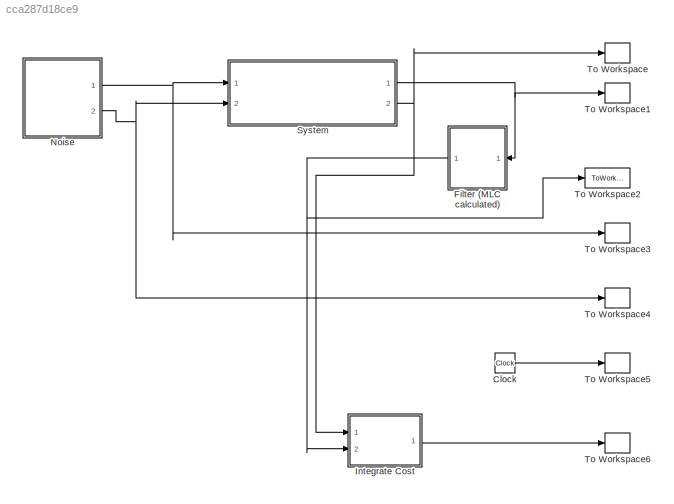
MODEL slx_cca287d18ce9
KIND model
CONFIG AbsTol = auto
CONFIG EnableMultiTasking = off
CONFIG FixedStep = auto
CONFIG MaxStep = auto
CONFIG MinStep = auto
CONFIG RelTol = 1e-3
CONFIG SampleTimeConstraint = Unconstrained
CONFIG Solver = VariableStepAuto
CONFIG SolverName = VariableStepAuto
CONFIG StartTime = 0.0
CONFIG StopTime = 20.0
BLOCK [Clock] Clock
  Decimation = 20
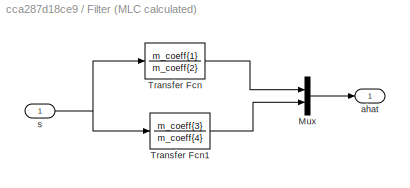
BLOCK [SubSystem] Filter (MLC calculated)
  Ports = [1, 1]
  RequestExecContextInheritance = off
BLOCK [Mux] Filter (MLC calculated)/Mux
  DisplayOption = bar
  Inputs = 2
  Ports = [2, 1]
BLOCK [TransferFcn] Filter (MLC calculated)/Transfer Fcn
  Denominator = m_coeff{2}
  Numerator = m_coeff{1}
BLOCK [TransferFcn] Filter (MLC calculated)/Transfer Fcn1
  Denominator = m_coeff{4}
  Numerator = m_coeff{3}
BLOCK [Outport] Filter (MLC calculated)/ahat
  IconDisplay = Port number
BLOCK [Inport] Filter (MLC calculated)/s
  IconDisplay = Port number
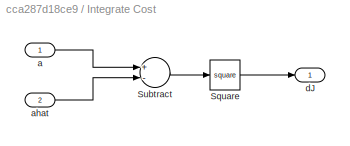
BLOCK [SubSystem] Integrate Cost
  Ports = [2, 1]
  RequestExecContextInheritance = off
BLOCK [Math] Integrate Cost/Square
  Operator = square
  Ports = [1, 1]
  SignedPower = off
BLOCK [Sum] Integrate Cost/Subtract
  InputSameDT = off
  Inputs = +-
  OutDataTypeStr = Inherit: Inherit via internal rule
  Ports = [2, 1]
  SaturateOnIntegerOverflow = off
BLOCK [Inport] Integrate Cost/a
  IconDisplay = Port number
BLOCK [Inport] Integrate Cost/ahat
  IconDisplay = Port number
  Port = 2
BLOCK [Outport] Integrate Cost/dJ
  IconDisplay = Port number
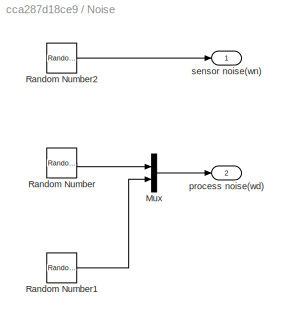
BLOCK [SubSystem] Noise
  Ports = [0, 2]
  RequestExecContextInheritance = off
BLOCK [Mux] Noise/Mux
  DisplayOption = bar
  Inputs = 2
  Ports = [2, 1]
BLOCK [RandomNumber] Noise/Random Number
  SampleTime = 0.01
BLOCK [RandomNumber] Noise/Random Number1
  Mean = 1
  SampleTime = 0.01
BLOCK [RandomNumber] Noise/Random Number2
  SampleTime = 0.01
  Variance = 0.1
BLOCK [Outport] Noise/process noise(wd)
  IconDisplay = Port number
  Port = 2
  PortDimensions = 2
BLOCK [Outport] Noise/sensor noise(wn)
  IconDisplay = Port number
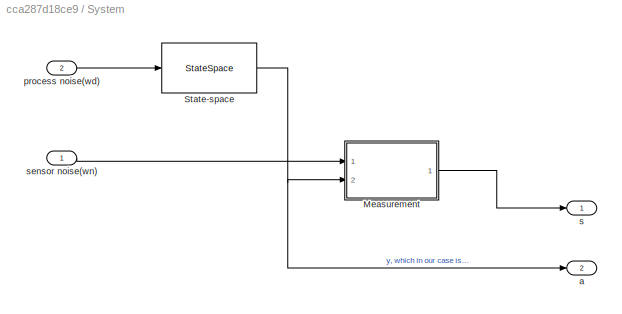
BLOCK [SubSystem] System
  Ports = [2, 2]
  RequestExecContextInheritance = off
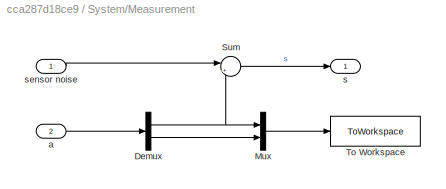
BLOCK [SubSystem] System/Measurement
  Ports = [2, 1]
  RequestExecContextInheritance = off
BLOCK [Demux] System/Measurement/Demux
  DisplayOption = bar
  Outputs = 2
  Ports = [1, 2]
BLOCK [Mux] System/Measurement/Mux
  DisplayOption = bar
  Inputs = 2
  Ports = [2, 1]
BLOCK [Sum] System/Measurement/Sum
  IconShape = round
  InputSameDT = off
  Inputs = |++
  OutDataTypeStr = Inherit: Inherit via internal rule
  Ports = [2, 1]
  SaturateOnIntegerOverflow = off
BLOCK [ToWorkspace] System/Measurement/To Workspace
  FixptAsFi = on
  MaxDataPoints = inf
  Ports = [1]
  SampleTime = -1
  SaveFormat = Timeseries
  VariableName = simout
BLOCK [Inport] System/Measurement/a
  IconDisplay = Port number
  Port = 2
BLOCK [Outport] System/Measurement/s
  IconDisplay = Port number
BLOCK [Inport] System/Measurement/sensor noise
  IconDisplay = Port number
BLOCK [StateSpace] System/State-space
  A = KF_sys.A
  B = KF_sys.B
  C = KF_sys.C
  D = KF_sys.D
  InitialCondition = [1 0]
  Ports = [1, 1]
BLOCK [Outport] System/a
  IconDisplay = Port number
  Port = 2
BLOCK [Inport] System/process noise(wd)
  IconDisplay = Port number
  Port = 2
BLOCK [Outport] System/s
  IconDisplay = Port number
BLOCK [Inport] System/sensor noise(wn)
  IconDisplay = Port number
BLOCK [ToWorkspace] To Workspace
  FixptAsFi = on
  MaxDataPoints = inf
  Ports = [1]
  SampleTime = -1
  SaveFormat = Timeseries
  VariableName = a
BLOCK [ToWorkspace] To Workspace1
  FixptAsFi = on
  MaxDataPoints = inf
  Ports = [1]
  SampleTime = -1
  SaveFormat = Timeseries
  VariableName = s
BLOCK [ToWorkspace] To Workspace2
  FixptAsFi = on
  MaxDataPoints = inf
  Ports = [1]
  SampleTime = -1
  SaveFormat = Timeseries
  VariableName = ahat
BLOCK [ToWorkspace] To Workspace3
  FixptAsFi = on
  MaxDataPoints = inf
  Ports = [1]
  SampleTime = -1
  SaveFormat = Timeseries
  VariableName = wn
BLOCK [ToWorkspace] To Workspace4
  FixptAsFi = on
  MaxDataPoints = inf
  Ports = [1]
  SampleTime = -1
  SaveFormat = Timeseries
  VariableName = wd
BLOCK [ToWorkspace] To Workspace5
  FixptAsFi = on
  MaxDataPoints = inf
  Ports = [1]
  SampleTime = -1
  SaveFormat = Timeseries
  VariableName = t
BLOCK [ToWorkspace] To Workspace6
  FixptAsFi = on
  MaxDataPoints = inf
  Ports = [1]
  SampleTime = -1
  SaveFormat = Timeseries
  VariableName = dJ
LINE Clock:1 -> To Workspace5:1
LINE Filter (MLC calculated)/Mux:1 -> Filter (MLC calculated)/ahat:1
LINE Filter (MLC calculated)/Transfer Fcn1:1 -> Filter (MLC calculated)/Mux:2
LINE Filter (MLC calculated)/Transfer Fcn:1 -> Filter (MLC calculated)/Mux:1
NET Filter (MLC calculated)/s:1 -> Filter (MLC calculated)/Transfer Fcn1:1, Filter (MLC calculated)/Transfer Fcn:1
NET Filter (MLC calculated):1 -> Integrate Cost:2, To Workspace2:1
LINE Integrate Cost/Square:1 -> Integrate Cost/dJ:1
LINE Integrate Cost/Subtract:1 -> Integrate Cost/Square:1
LINE Integrate Cost/a:1 -> Integrate Cost/Subtract:1
LINE Integrate Cost/ahat:1 -> Integrate Cost/Subtract:2
LINE Integrate Cost:1 -> To Workspace6:1
LINE Noise/Mux:1 -> Noise/process noise(wd):1
LINE Noise/Random Number1:1 -> Noise/Mux:2
LINE Noise/Random Number2:1 -> Noise/sensor noise(wn):1
LINE Noise/Random Number:1 -> Noise/Mux:1
NET Noise:1 -> System:1, To Workspace3:1
NET Noise:2 -> System:2, To Workspace4:1
NET System/Measurement/Demux:1 -> System/Measurement/Mux:1, System/Measurement/Sum:2
LINE System/Measurement/Demux:2 -> System/Measurement/Mux:2
LINE System/Measurement/Mux:1 -> System/Measurement/To Workspace:1
LINE System/Measurement/Sum:1 -> System/Measurement/s:1
LINE System/Measurement/a:1 -> System/Measurement/Demux:1
LINE System/Measurement/sensor noise:1 -> System/Measurement/Sum:1
LINE System/Measurement:1 -> System/s:1
NET System/State-space:1 -> System/Measurement:2, System/a:1
LINE System/process noise(wd):1 -> System/State-space:1
LINE System/sensor noise(wn):1 -> System/Measurement:1
NET System:1 -> Filter (MLC calculated):1, To Workspace1:1
NET System:2 -> Integrate Cost:1, To Workspace:1
note: NET lines group one-source signal fan-out (src -> all destinations, sorted); 1:1 wires keep LINE
